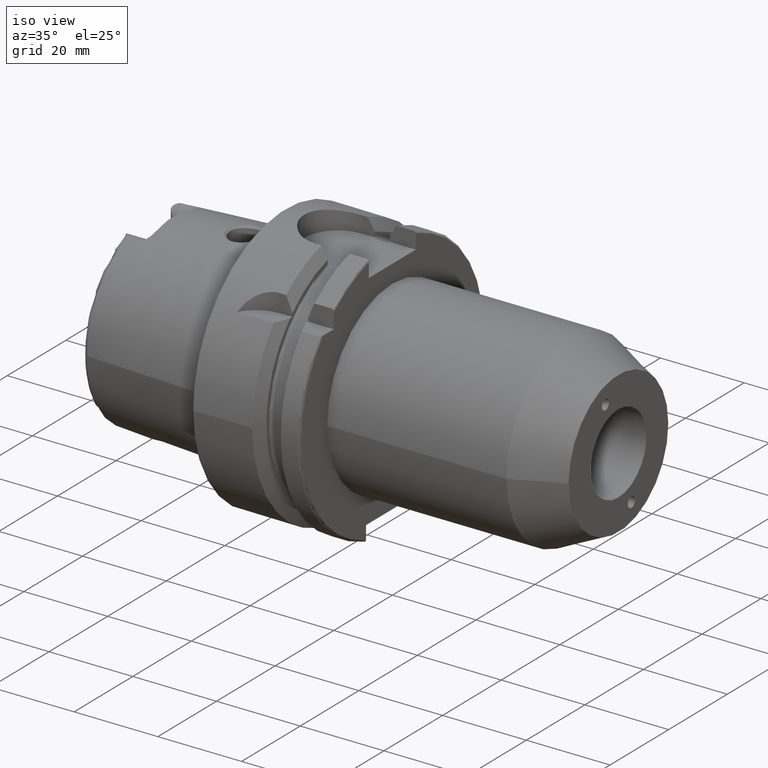
[diagram: clean part render]
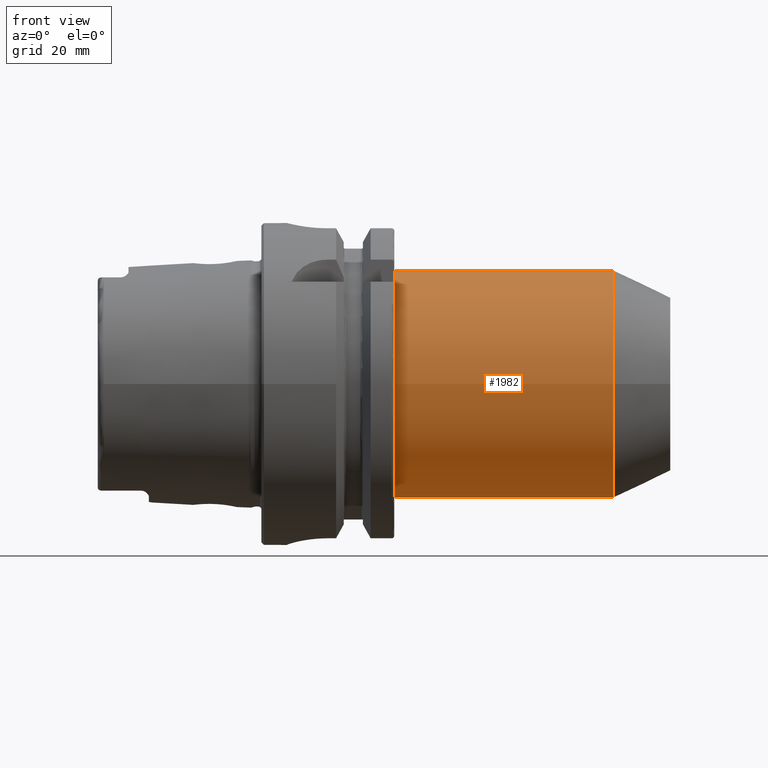
[diagram: tour spotlight — one face highlighted and labeled with its STEP entity id]
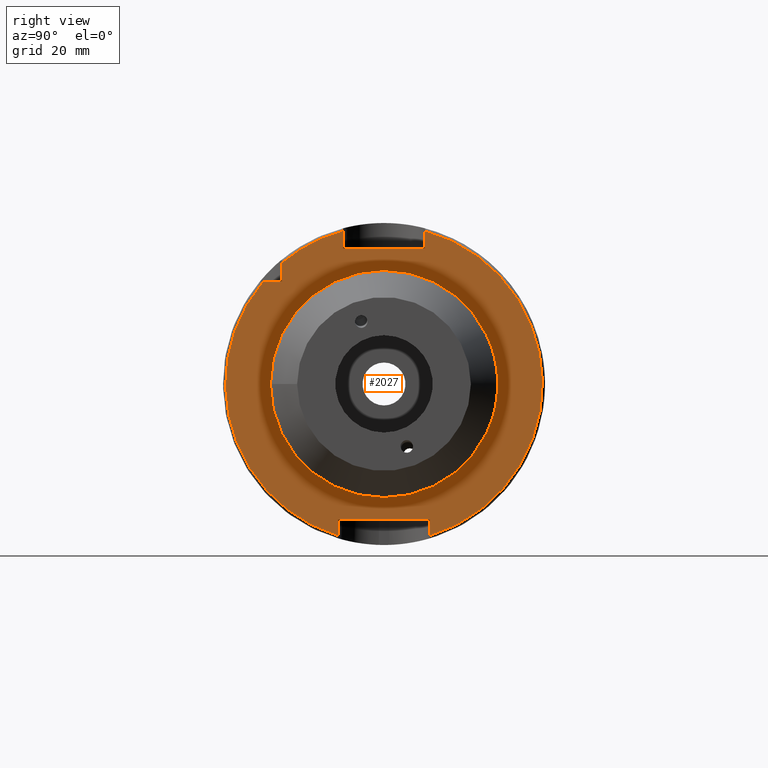
[diagram: tour spotlight — one face highlighted and labeled with its STEP entity id]
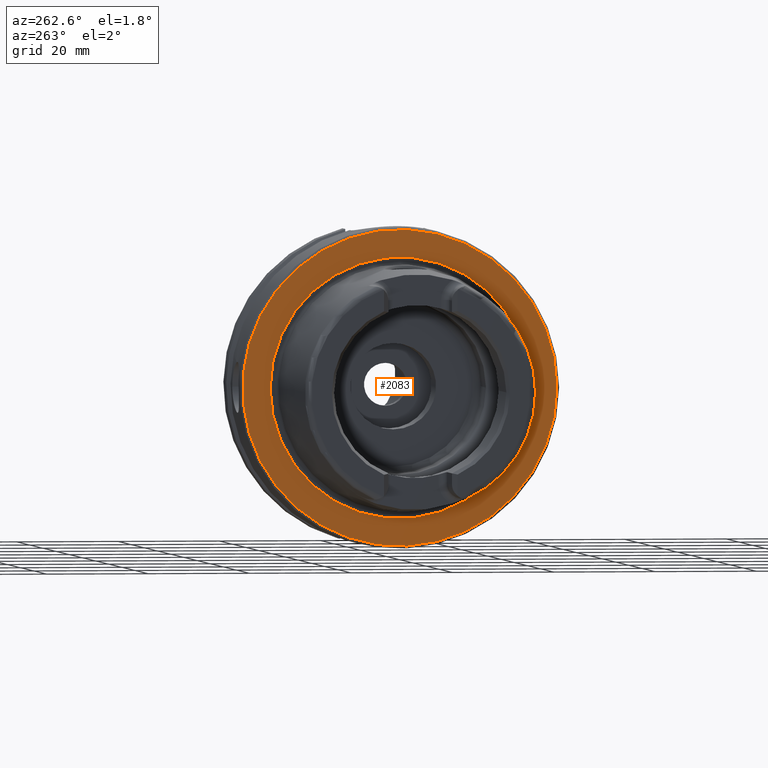
[diagram: tour spotlight — one face highlighted and labeled with its STEP entity id]
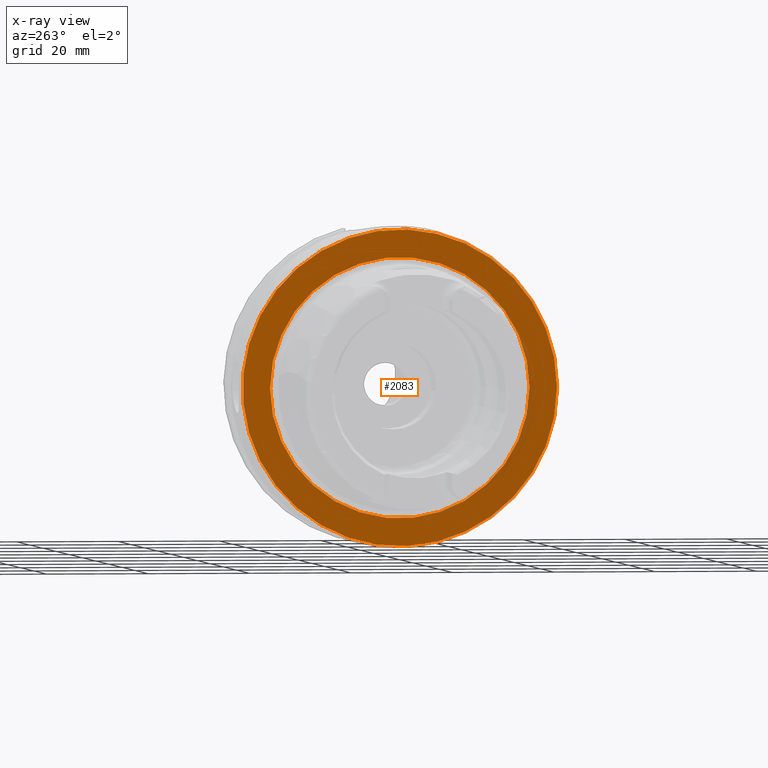
[diagram: x-ray of the same camera — body ghosted, this tour face saturated]
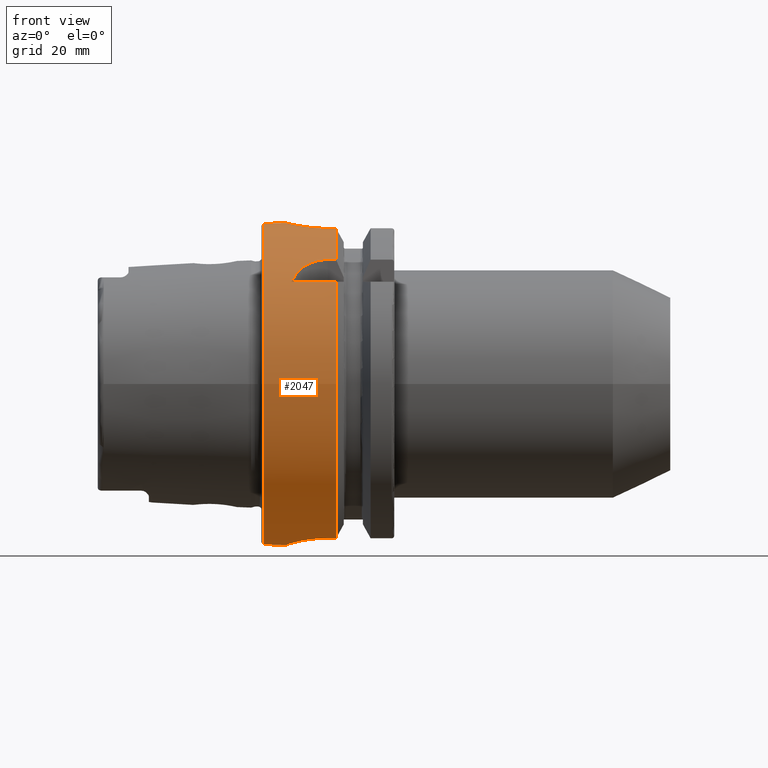
[diagram: tour spotlight — one face highlighted and labeled with its STEP entity id]
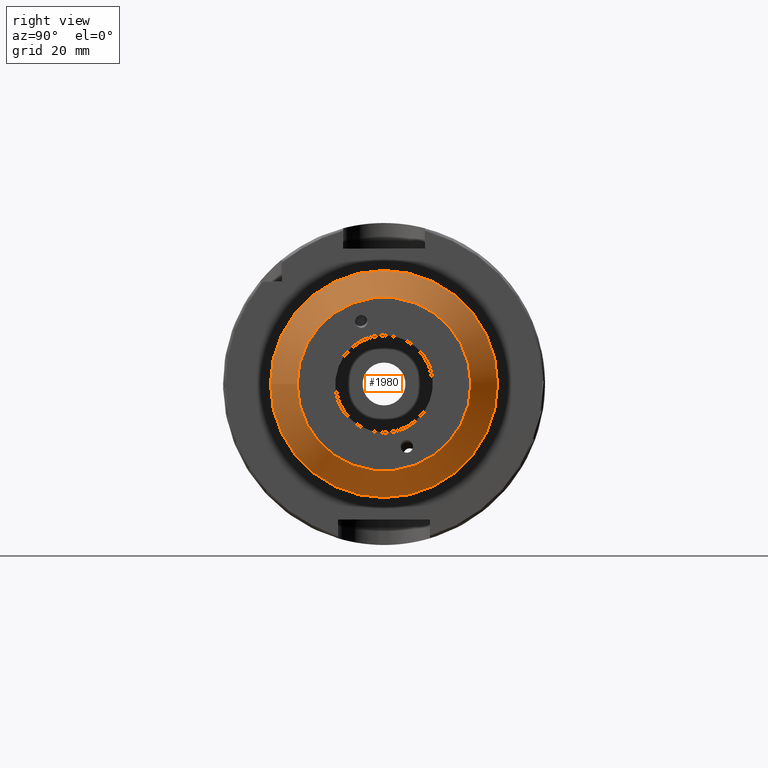
[diagram: tour spotlight — one face highlighted and labeled with its STEP entity id]
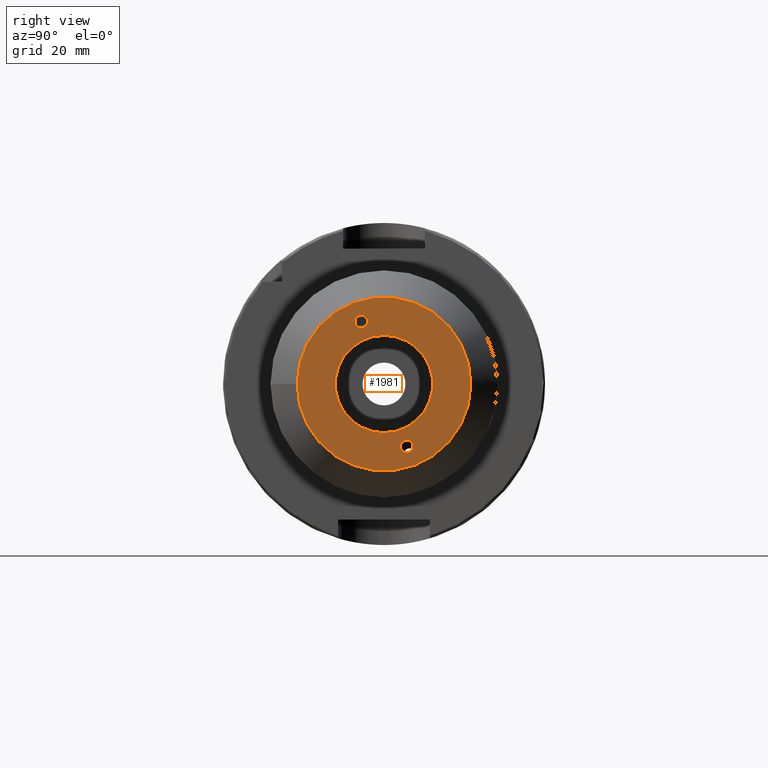
[diagram: tour spotlight — one face highlighted and labeled with its STEP entity id]
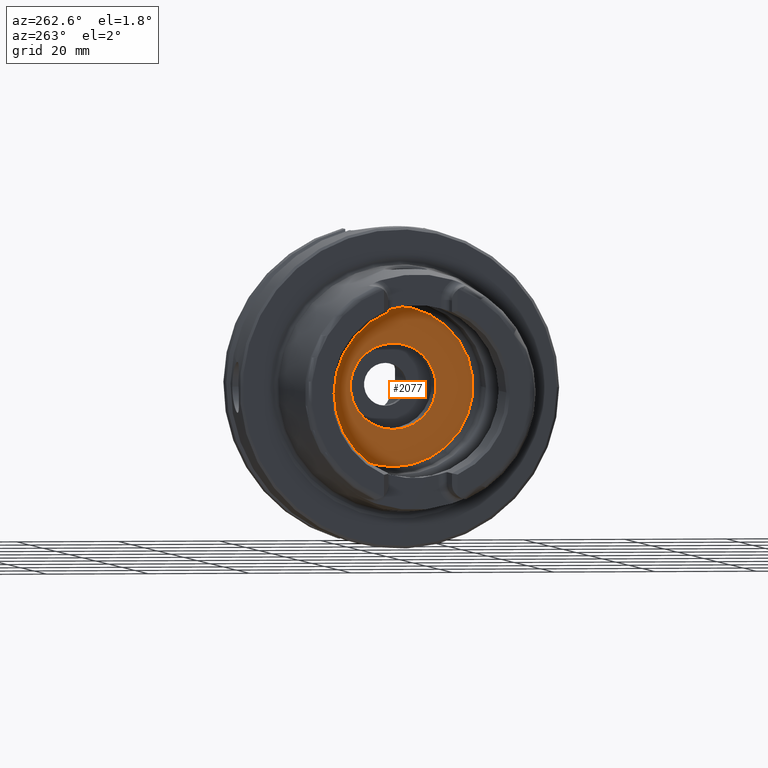
[diagram: tour spotlight — one face highlighted and labeled with its STEP entity id]
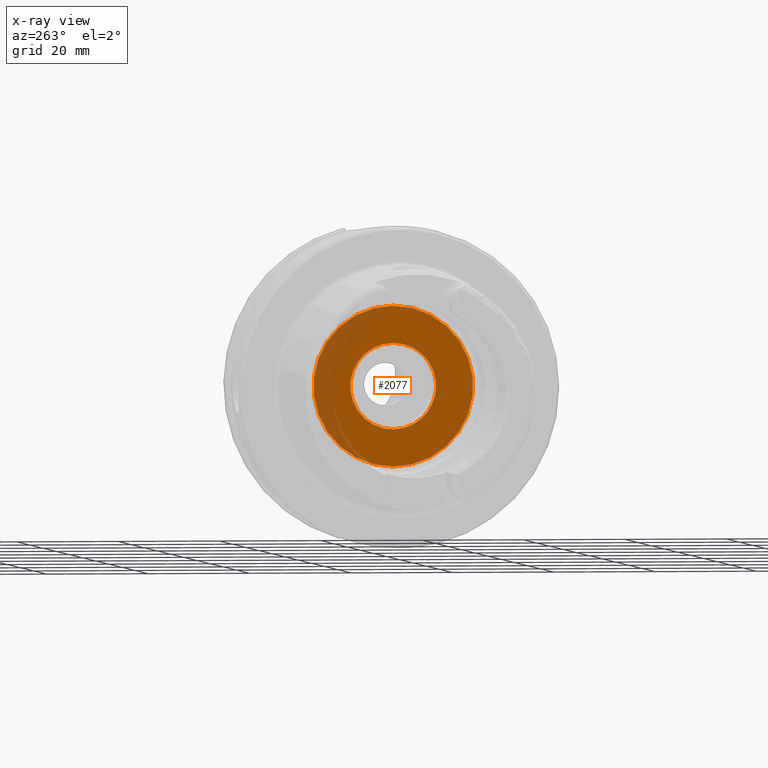
[diagram: x-ray of the same camera — body ghosted, this tour face saturated]
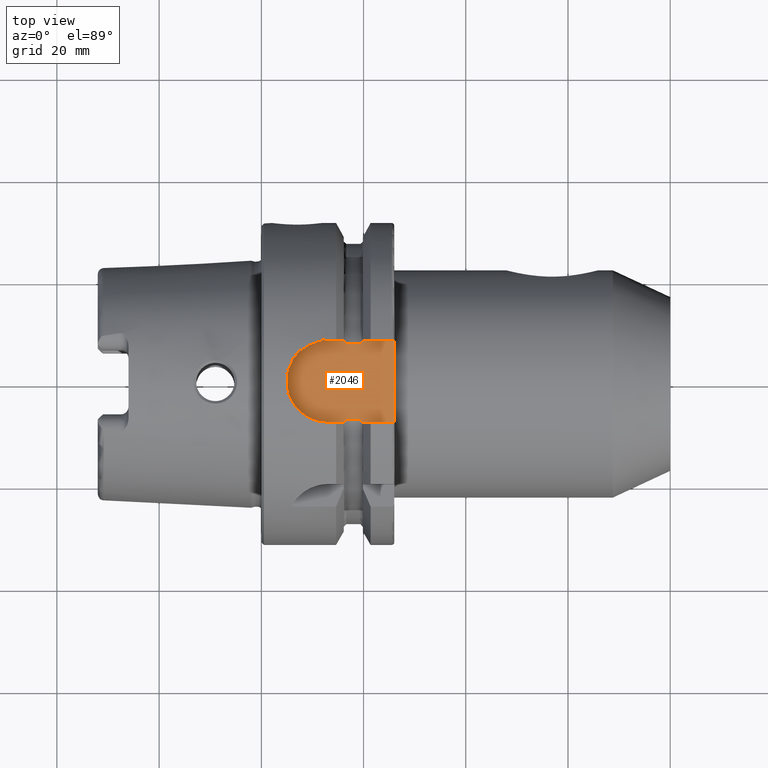
[diagram: tour spotlight — one face highlighted and labeled with its STEP entity id]
A machine part: a face-by-face anatomy tour. The part has 118 B-rep faces; the first image is the clean iso view, then the 8 largest visible faces are spotlighted one at a time (largest first), each with its STEP entity span.

Face 1 — front view, entity #1982. In plain terms, the highlighted cylindrical surface (bore or boss wall) has radius 22.225 mm, axis along (1, 0, 0).
Definition (entity closure, byte-faithful):
#58=FACE_BOUND('',#354,.T.);
#109=B_SPLINE_CURVE_WITH_KNOTS('',3,(#2977,#2978,#2979,#2980,#2981,#2982,
#2983,#2984,#2985,#2986,#2987,#2988,#2989,#2990,#2991,#2992,#2993,#2994),
 .UNSPECIFIED.,.F.,.F.,(4,2,2,2,2,2,2,2,4),(1.26582394054199,1.5888496097649,
1.91187527898781,2.2217615800359,2.53164788108398,2.84153418213206,3.15142048318015,
3.47444615240306,3.79747182162597),.UNSPECIFIED.);
#110=B_SPLINE_CURVE_WITH_KNOTS('',3,(#2998,#2999,#3000,#3001,#3002,#3003,
#3004,#3005,#3006,#3007,#3008,#3009,#3010,#3011,#3012,#3013,#3014,#3015,
#3016),.UNSPECIFIED.,.F.,.F.,(4,2,2,2,3,2,2,2,4),(3.79747182162597,4.12049749084888,
4.44352316007179,4.75340946111988,5.06329576216796,5.37318206321605,5.68306836426413,
6.00609403348704,6.32911970270995),.UNSPECIFIED.);
#186=CYLINDRICAL_SURFACE('',#2135,22.225);
#229=FACE_OUTER_BOUND('',#353,.T.);
#353=EDGE_LOOP('',(#1371,#1372,#1373,#1374));
#354=EDGE_LOOP('',(#1375,#1376));
#477=LINE('',#3090,#587);
#587=VECTOR('',#2416,22.225);
#697=CIRCLE('',#2133,22.225);
#698=CIRCLE('',#2136,22.225);
#812=VERTEX_POINT('',#2975);
#813=VERTEX_POINT('',#2976);
#823=VERTEX_POINT('',#3084);
#824=VERTEX_POINT('',#3089);
#1019=EDGE_CURVE('',#812,#813,#109,.T.);
#1022=EDGE_CURVE('',#813,#812,#110,.T.);
#1035=EDGE_CURVE('',#823,#823,#697,.T.);
#1036=EDGE_CURVE('',#823,#824,#477,.T.);
#1037=EDGE_CURVE('',#824,#824,#698,.T.);
#1371=ORIENTED_EDGE('',*,*,#1035,.F.);
#1372=ORIENTED_EDGE('',*,*,#1036,.T.);
#1373=ORIENTED_EDGE('',*,*,#1037,.F.);
#1374=ORIENTED_EDGE('',*,*,#1036,.F.);
#1375=ORIENTED_EDGE('',*,*,#1019,.T.);
#1376=ORIENTED_EDGE('',*,*,#1022,.T.);
#1982=ADVANCED_FACE('',(#229,#58),#186,.T.);
#2133=AXIS2_PLACEMENT_3D('',#3086,#2410,#2411);
#2135=AXIS2_PLACEMENT_3D('',#3088,#2414,#2415);
#2136=AXIS2_PLACEMENT_3D('',#3091,#2417,#2418);
#2410=DIRECTION('center_axis',(1.,0.,0.));
#2411=DIRECTION('ref_axis',(0.,0.,-1.));
#2414=DIRECTION('center_axis',(1.,0.,0.));
#2415=DIRECTION('ref_axis',(0.,1.,0.));
#2416=DIRECTION('',(-1.,0.,0.));
#2417=DIRECTION('center_axis',(-1.,0.,0.));
#2418=DIRECTION('ref_axis',(0.,1.,0.));
#2975=CARTESIAN_POINT('',(47.9,22.225,0.));
#2976=CARTESIAN_POINT('',(65.9,22.225,0.));
#2977=CARTESIAN_POINT('Ctrl Pts',(47.9,22.225,9.71445146547012E-16));
#2978=CARTESIAN_POINT('Ctrl Pts',(47.9,22.225,-1.07675223074304));
#2979=CARTESIAN_POINT('Ctrl Pts',(48.1872550137655,22.1393903647724,-2.18715679516309));
#2980=CARTESIAN_POINT('Ctrl Pts',(49.2525072446435,21.8562013500568,-4.15243385898174));
#2981=CARTESIAN_POINT('Ctrl Pts',(50.0284250394779,21.6635346733893,-5.00913733680887));
#2982=CARTESIAN_POINT('Ctrl Pts',(51.6791819816189,21.3291167280987,-6.27958133679025));
#2983=CARTESIAN_POINT('Ctrl Pts',(52.6611736874285,21.16239385207,-6.79952293932358));
#2984=CARTESIAN_POINT('Ctrl Pts',(54.7549126974015,20.9308898087762,-7.48186252034971));
#2985=CARTESIAN_POINT('Ctrl Pts',(55.8670456631731,20.869082909309,-7.64408290930895));
#2986=CARTESIAN_POINT('Ctrl Pts',(57.9329543368269,20.869082909309,-7.64408290930895));
#2987=CARTESIAN_POINT('Ctrl Pts',(59.0450873025985,20.9308898087762,-7.48186252034971));
#2988=CARTESIAN_POINT('Ctrl Pts',(61.1388263125715,21.16239385207,-6.79952293932358));
#2989=CARTESIAN_POINT('Ctrl Pts',(62.1208180183811,21.3291167280987,-6.27958133679025));
#2990=CARTESIAN_POINT('Ctrl Pts',(63.7715749605221,21.6635346733893,-5.00913733680887));
#2991=CARTESIAN_POINT('Ctrl Pts',(64.5474927553565,21.8562013500568,-4.15243385898173));
#2992=CARTESIAN_POINT('Ctrl Pts',(65.6127449862345,22.1393903647724,-2.18715679516308));
#2993=CARTESIAN_POINT('Ctrl Pts',(65.9,22.225,-1.07675223074304));
#2994=CARTESIAN_POINT('Ctrl Pts',(65.9,22.225,-3.88578058618805E-15));
#2998=CARTESIAN_POINT('Ctrl Pts',(65.9,22.225,-2.77555756156289E-15));
#2999=CARTESIAN_POINT('Ctrl Pts',(65.9,22.225,1.07675223074304));
#3000=CARTESIAN_POINT('Ctrl Pts',(65.6127449862345,22.1393903647724,2.18715679516308));
#3001=CARTESIAN_POINT('Ctrl Pts',(64.5474927553565,21.8562013500568,4.15243385898174));
#3002=CARTESIAN_POINT('Ctrl Pts',(63.7715749605221,21.6635346733893,5.00913733680888));
#3003=CARTESIAN_POINT('Ctrl Pts',(62.1208180183811,21.3291167280987,6.27958133679025));
#3004=CARTESIAN_POINT('Ctrl Pts',(61.1388263125715,21.16239385207,6.79952293932358));
#3005=CARTESIAN_POINT('Ctrl Pts',(59.0450873025985,20.9308898087762,7.48186252034971));
#3006=CARTESIAN_POINT('Ctrl Pts',(57.9329543368269,20.8690829093089,7.64408290930895));
#3007=CARTESIAN_POINT('Ctrl Pts',(56.9,20.869082909309,7.64408290930895));
#3008=CARTESIAN_POINT('Ctrl Pts',(55.8670456631731,20.869082909309,7.64408290930895));
#3009=CARTESIAN_POINT('Ctrl Pts',(54.7549126974015,20.9308898087762,7.4818625203497));
#3010=CARTESIAN_POINT('Ctrl Pts',(52.6611736874285,21.16239385207,6.79952293932358));
#3011=CARTESIAN_POINT('Ctrl Pts',(51.6791819816189,21.3291167280987,6.27958133679025));
#3012=CARTESIAN_POINT('Ctrl Pts',(50.0284250394779,21.6635346733893,5.00913733680888));
#3013=CARTESIAN_POINT('Ctrl Pts',(49.2525072446435,21.8562013500568,4.15243385898174));
#3014=CARTESIAN_POINT('Ctrl Pts',(48.1872550137655,22.1393903647724,2.18715679516309));
#3015=CARTESIAN_POINT('Ctrl Pts',(47.9,22.225,1.07675223074304));
#3016=CARTESIAN_POINT('Ctrl Pts',(47.9,22.225,8.32667268468867E-16));
#3084=CARTESIAN_POINT('',(68.7949513403375,-22.225,-2.72177751110499E-15));
#3086=CARTESIAN_POINT('Origin',(68.7949513403375,0.,0.));
#3088=CARTESIAN_POINT('Origin',(47.3974756701688,0.,0.));
#3089=CARTESIAN_POINT('',(26.,-22.225,-2.72177751110499E-15));
#3090=CARTESIAN_POINT('',(47.3974756701688,-22.225,-2.72177751110499E-15));
#3091=CARTESIAN_POINT('Origin',(26.,0.,0.));

Face 2 — right view, entity #2027. In plain terms, the highlighted planar face has unit normal (1, 0, 0).
Definition (entity closure, byte-faithful):
#61=FACE_BOUND('',#402,.T.);
#92=PLANE('',#2234);
#274=FACE_OUTER_BOUND('',#401,.T.);
#401=EDGE_LOOP('',(#1635,#1636,#1637,#1638,#1639,#1640,#1641,#1642,#1643,
#1644,#1645));
#402=EDGE_LOOP('',(#1646));
#510=LINE('',#3869,#620);
#516=LINE('',#3888,#626);
#527=LINE('',#3988,#637);
#529=LINE('',#4019,#639);
#537=LINE('',#4080,#647);
#547=LINE('',#4161,#657);
#548=LINE('',#4163,#658);
#549=LINE('',#4164,#659);
#620=VECTOR('',#2569,10.);
#626=VECTOR('',#2581,10.);
#637=VECTOR('',#2632,10.);
#639=VECTOR('',#2636,10.);
#647=VECTOR('',#2650,10.);
#657=VECTOR('',#2688,10.);
#658=VECTOR('',#2689,10.);
#659=VECTOR('',#2690,10.);
#698=CIRCLE('',#2136,22.225);
#739=CIRCLE('',#2217,31.);
#746=CIRCLE('',#2235,31.);
#747=CIRCLE('',#2236,31.);
#824=VERTEX_POINT('',#3089);
#902=VERTEX_POINT('',#3857);
#903=VERTEX_POINT('',#3868);
#910=VERTEX_POINT('',#3887);
#928=VERTEX_POINT('',#3967);
#930=VERTEX_POINT('',#3985);
#931=VERTEX_POINT('',#3987);
#934=VERTEX_POINT('',#4006);
#936=VERTEX_POINT('',#4018);
#961=VERTEX_POINT('',#4158);
#962=VERTEX_POINT('',#4160);
#963=VERTEX_POINT('',#4162);
#1037=EDGE_CURVE('',#824,#824,#698,.T.);
#1139=EDGE_CURVE('',#903,#902,#510,.T.);
#1147=EDGE_CURVE('',#910,#903,#516,.T.);
#1173=EDGE_CURVE('',#928,#910,#739,.T.);
#1177=EDGE_CURVE('',#931,#930,#527,.T.);
#1182=EDGE_CURVE('',#936,#934,#529,.T.);
#1197=EDGE_CURVE('',#930,#936,#537,.T.);
#1218=EDGE_CURVE('',#902,#931,#746,.T.);
#1219=EDGE_CURVE('',#934,#961,#747,.T.);
#1220=EDGE_CURVE('',#961,#962,#547,.T.);
#1221=EDGE_CURVE('',#962,#963,#548,.T.);
#1222=EDGE_CURVE('',#963,#928,#549,.T.);
#1635=ORIENTED_EDGE('',*,*,#1139,.T.);
#1636=ORIENTED_EDGE('',*,*,#1218,.T.);
#1637=ORIENTED_EDGE('',*,*,#1177,.T.);
#1638=ORIENTED_EDGE('',*,*,#1197,.T.);
#1639=ORIENTED_EDGE('',*,*,#1182,.T.);
#1640=ORIENTED_EDGE('',*,*,#1219,.T.);
#1641=ORIENTED_EDGE('',*,*,#1220,.T.);
#1642=ORIENTED_EDGE('',*,*,#1221,.T.);
#1643=ORIENTED_EDGE('',*,*,#1222,.T.);
#1644=ORIENTED_EDGE('',*,*,#1173,.T.);
#1645=ORIENTED_EDGE('',*,*,#1147,.T.);
#1646=ORIENTED_EDGE('',*,*,#1037,.T.);
#2027=ADVANCED_FACE('',(#274,#61),#92,.T.);
#2136=AXIS2_PLACEMENT_3D('',#3091,#2417,#2418);
#2217=AXIS2_PLACEMENT_3D('',#3968,#2627,#2628);
#2234=AXIS2_PLACEMENT_3D('',#4156,#2682,#2683);
#2235=AXIS2_PLACEMENT_3D('',#4157,#2684,#2685);
#2236=AXIS2_PLACEMENT_3D('',#4159,#2686,#2687);
#2417=DIRECTION('center_axis',(-1.,0.,0.));
#2418=DIRECTION('ref_axis',(0.,1.,0.));
#2569=DIRECTION('',(0.,-1.,0.));
#2581=DIRECTION('',(0.,0.,-1.));
#2627=DIRECTION('center_axis',(1.,0.,0.));
#2628=DIRECTION('ref_axis',(0.,0.,-1.));
#2632=DIRECTION('',(0.,0.,1.));
#2636=DIRECTION('',(0.,0.,-1.));
#2650=DIRECTION('',(0.,1.,0.));
#2682=DIRECTION('center_axis',(1.,0.,0.));
#2683=DIRECTION('ref_axis',(0.,0.,-1.));
#2684=DIRECTION('center_axis',(1.,0.,0.));
#2685=DIRECTION('ref_axis',(0.,0.,-1.));
#2686=DIRECTION('center_axis',(1.,0.,0.));
#2687=DIRECTION('ref_axis',(0.,0.,-1.));
#2688=DIRECTION('',(0.,0.,-1.));
#2689=DIRECTION('',(0.,-1.,0.));
#2690=DIRECTION('',(0.,0.,1.));
#3089=CARTESIAN_POINT('',(26.,-22.225,-2.72177751110499E-15));
#3091=CARTESIAN_POINT('Origin',(26.,0.,0.));
#3857=CARTESIAN_POINT('',(26.,-23.685438564654,20.));
#3868=CARTESIAN_POINT('',(26.,-20.,20.));
#3869=CARTESIAN_POINT('',(26.,-12.,20.));
#3887=CARTESIAN_POINT('',(26.,-20.,23.685438564654));
#3888=CARTESIAN_POINT('',(26.,-20.,10.));
#3967=CARTESIAN_POINT('',(26.,-8.,29.9499582637439));
#3968=CARTESIAN_POINT('Origin',(26.,0.,0.));
#3985=CARTESIAN_POINT('',(26.,-9.,-26.5));
#3987=CARTESIAN_POINT('',(26.,-9.,-29.6647939483827));
#3988=CARTESIAN_POINT('',(26.,-9.,-13.25));
#4006=CARTESIAN_POINT('',(26.,9.,-29.6647939483827));
#4018=CARTESIAN_POINT('',(26.,9.,-26.5));
#4019=CARTESIAN_POINT('',(26.,9.,-13.25));
#4080=CARTESIAN_POINT('',(26.,1.94289029309402E-15,-26.5));
#4156=CARTESIAN_POINT('Origin',(26.,0.,0.));
#4157=CARTESIAN_POINT('Origin',(26.,0.,0.));
#4158=CARTESIAN_POINT('',(26.,8.,29.9499582637439));
#4159=CARTESIAN_POINT('Origin',(26.,0.,0.));
#4160=CARTESIAN_POINT('',(26.,8.,26.5));
#4161=CARTESIAN_POINT('',(26.,8.,13.25));
#4162=CARTESIAN_POINT('',(26.,-8.,26.5));
#4163=CARTESIAN_POINT('',(26.,5.55111512312578E-16,26.5));
#4164=CARTESIAN_POINT('',(26.,-8.,13.25));

Face 3 — auxiliary view, entity #2083. An x-ray twin of the same camera follows (body ghosted, this face saturated) — the face is partly hidden behind the body. In plain terms, the highlighted planar face has unit normal (-1, 0, 0).
Definition (entity closure, byte-faithful):
#66=FACE_BOUND('',#463,.T.);
#108=PLANE('',#2345);
#330=FACE_OUTER_BOUND('',#462,.T.);
#462=EDGE_LOOP('',(#1932));
#463=EDGE_LOOP('',(#1933));
#800=CIRCLE('',#2344,25.5879092835167);
#801=CIRCLE('',#2346,31.);
#1006=VERTEX_POINT('',#4476);
#1007=VERTEX_POINT('',#4480);
#1316=EDGE_CURVE('',#1006,#1006,#800,.T.);
#1317=EDGE_CURVE('',#1007,#1007,#801,.T.);
#1932=ORIENTED_EDGE('',*,*,#1317,.F.);
#1933=ORIENTED_EDGE('',*,*,#1316,.T.);
#2083=ADVANCED_FACE('',(#330,#66),#108,.T.);
#2344=AXIS2_PLACEMENT_3D('',#4478,#2930,#2931);
#2345=AXIS2_PLACEMENT_3D('',#4479,#2932,#2933);
#2346=AXIS2_PLACEMENT_3D('',#4481,#2934,#2935);
#2930=DIRECTION('center_axis',(1.,0.,0.));
#2931=DIRECTION('ref_axis',(0.,0.,-1.));
#2932=DIRECTION('center_axis',(-1.,0.,0.));
#2933=DIRECTION('ref_axis',(0.,0.,1.));
#2934=DIRECTION('center_axis',(1.,0.,0.));
#2935=DIRECTION('ref_axis',(0.,0.,-1.));
#4476=CARTESIAN_POINT('',(-3.55618312575245E-16,-25.5879092835167,-3.13361512009315E-15));
#4478=CARTESIAN_POINT('Origin',(0.,0.,0.));
#4479=CARTESIAN_POINT('Origin',(0.,31.,0.));
#4480=CARTESIAN_POINT('',(-5.89805981832114E-16,-31.,-3.7964050773568E-15));
#4481=CARTESIAN_POINT('Origin',(0.,0.,0.));

Face 4 — front view, entity #2047. In plain terms, the highlighted cylindrical surface (bore or boss wall) has radius 31.5 mm, axis along (1, 0, 0).
Definition (entity closure, byte-faithful):
#62=FACE_BOUND('',#423,.T.);
#139=B_SPLINE_CURVE_WITH_KNOTS('',3,(#3810,#3811,#3812,#3813,#3814,#3815,
#3816,#3817,#3818,#3819,#3820,#3821,#3822,#3823,#3824,#3825,#3826,#3827,
#3828,#3829,#3830,#3831,#3832,#3833,#3834,#3835),.UNSPECIFIED.,.F.,.F.,
(4,2,2,2,2,2,2,2,2,2,2,2,4),(0.,0.188688694287612,0.377377388575223,0.56606194688798,
0.754746505200737,0.943431063513494,1.13211562182625,1.32080431611386,1.50949301040147,
1.69818170468909,1.8868703989767,2.07555495728945,2.26423951560221),
 .UNSPECIFIED.);
#140=B_SPLINE_CURVE_WITH_KNOTS('',3,(#3836,#3837,#3838,#3839,#3840,#3841,
#3842,#3843,#3844,#3845),.UNSPECIFIED.,.F.,.F.,(4,2,2,2,4),(2.26423951560221,
2.45292407391497,2.64160863222773,2.83029732651534,3.01898602080295),
 .UNSPECIFIED.);
#143=B_SPLINE_CURVE_WITH_KNOTS('',3,(#3907,#3908,#3909,#3910,#3911,#3912,
#3913,#3914,#3915,#3916,#3917,#3918),.UNSPECIFIED.,.F.,.F.,(4,2,2,2,2,4),
(1.1085154204615,1.31979218709236,1.52798350480179,1.73617482251122,1.90421770126337,
2.07226058001552),.UNSPECIFIED.);
#153=B_SPLINE_CURVE_WITH_KNOTS('',3,(#4096,#4097,#4098,#4099,#4100,#4101,
#4102,#4103,#4104,#4105),.UNSPECIFIED.,.F.,.F.,(4,2,2,2,4),(1.20927420824097,
1.5131742975437,1.81707438684643,2.12000449915965,2.42293461147287),
 .UNSPECIFIED.);
#156=B_SPLINE_CURVE_WITH_KNOTS('',3,(#4131,#4132,#4133,#4134,#4135,#4136,
#4137,#4138,#4139,#4140),.UNSPECIFIED.,.F.,.F.,(4,2,2,2,4),(0.,0.30293011231322,
0.605860224626439,0.90976031392917,1.2136604032319),.UNSPECIFIED.);
#166=B_SPLINE_CURVE_WITH_KNOTS('',3,(#4295,#4296,#4297,#4298,#4299,#4300,
#4301,#4302,#4303,#4304,#4305,#4306,#4307,#4308,#4309,#4310,#4311,#4312),
 .UNSPECIFIED.,.F.,.F.,(4,2,2,2,2,2,2,2,4),(0.,0.302805879979318,0.605611759958635,
0.908372461246501,1.21113316253437,1.51389386382223,1.8166545651101,2.11946044508942,
2.42226632506874),.UNSPECIFIED.);
#205=CYLINDRICAL_SURFACE('',#2267,31.5);
#294=FACE_OUTER_BOUND('',#422,.T.);
#422=EDGE_LOOP('',(#1749,#1750,#1751,#1752,#1753,#1754,#1755,#1756,#1757,
#1758,#1759,#1760,#1761,#1762,#1763,#1764,#1765,#1766));
#423=EDGE_LOOP('',(#1767,#1768));
#514=LINE('',#3880,#624);
#520=LINE('',#3927,#630);
#541=LINE('',#4113,#651);
#542=LINE('',#4117,#652);
#557=LINE('',#4289,#667);
#560=LINE('',#4319,#670);
#562=LINE('',#4325,#672);
#624=VECTOR('',#2577,10.);
#630=VECTOR('',#2589,10.);
#651=VECTOR('',#2658,10.);
#652=VECTOR('',#2661,10.);
#667=VECTOR('',#2748,10.);
#670=VECTOR('',#2759,10.);
#672=VECTOR('',#2767,31.5);
#732=CIRCLE('',#2206,31.5);
#733=CIRCLE('',#2207,31.5);
#742=CIRCLE('',#2228,31.5);
#743=CIRCLE('',#2230,31.5);
#759=CIRCLE('',#2268,31.5);
#760=CIRCLE('',#2269,31.5);
#896=VERTEX_POINT('',#3807);
#897=VERTEX_POINT('',#3809);
#907=VERTEX_POINT('',#3877);
#908=VERTEX_POINT('',#3879);
#913=VERTEX_POINT('',#3906);
#915=VERTEX_POINT('',#3923);
#920=VERTEX_POINT('',#3939);
#921=VERTEX_POINT('',#3941);
#951=VERTEX_POINT('',#4094);
#952=VERTEX_POINT('',#4095);
#953=VERTEX_POINT('',#4115);
#954=VERTEX_POINT('',#4116);
#957=VERTEX_POINT('',#4130);
#958=VERTEX_POINT('',#4145);
#977=VERTEX_POINT('',#4286);
#978=VERTEX_POINT('',#4288);
#979=VERTEX_POINT('',#4294);
#981=VERTEX_POINT('',#4324);
#1133=EDGE_CURVE('',#897,#896,#139,.T.);
#1134=EDGE_CURVE('',#896,#897,#140,.T.);
#1144=EDGE_CURVE('',#908,#907,#514,.T.);
#1151=EDGE_CURVE('',#907,#913,#143,.T.);
#1155=EDGE_CURVE('',#913,#915,#520,.T.);
#1161=EDGE_CURVE('',#908,#920,#732,.T.);
#1162=EDGE_CURVE('',#920,#921,#733,.T.);
#1200=EDGE_CURVE('',#951,#952,#153,.T.);
#1204=EDGE_CURVE('',#952,#921,#541,.T.);
#1205=EDGE_CURVE('',#953,#954,#542,.T.);
#1210=EDGE_CURVE('',#954,#957,#156,.T.);
#1212=EDGE_CURVE('',#957,#951,#742,.T.);
#1213=EDGE_CURVE('',#953,#958,#743,.T.);
#1250=EDGE_CURVE('',#978,#977,#557,.T.);
#1252=EDGE_CURVE('',#977,#979,#166,.T.);
#1256=EDGE_CURVE('',#979,#958,#560,.T.);
#1258=EDGE_CURVE('',#978,#915,#759,.T.);
#1259=EDGE_CURVE('',#920,#981,#562,.T.);
#1260=EDGE_CURVE('',#981,#981,#760,.T.);
#1749=ORIENTED_EDGE('',*,*,#1155,.T.);
#1750=ORIENTED_EDGE('',*,*,#1258,.F.);
#1751=ORIENTED_EDGE('',*,*,#1250,.T.);
#1752=ORIENTED_EDGE('',*,*,#1252,.T.);
#1753=ORIENTED_EDGE('',*,*,#1256,.T.);
#1754=ORIENTED_EDGE('',*,*,#1213,.F.);
#1755=ORIENTED_EDGE('',*,*,#1205,.T.);
#1756=ORIENTED_EDGE('',*,*,#1210,.T.);
#1757=ORIENTED_EDGE('',*,*,#1212,.T.);
#1758=ORIENTED_EDGE('',*,*,#1200,.T.);
#1759=ORIENTED_EDGE('',*,*,#1204,.T.);
#1760=ORIENTED_EDGE('',*,*,#1162,.F.);
#1761=ORIENTED_EDGE('',*,*,#1259,.T.);
#1762=ORIENTED_EDGE('',*,*,#1260,.T.);
#1763=ORIENTED_EDGE('',*,*,#1259,.F.);
#1764=ORIENTED_EDGE('',*,*,#1161,.F.);
#1765=ORIENTED_EDGE('',*,*,#1144,.T.);
#1766=ORIENTED_EDGE('',*,*,#1151,.T.);
#1767=ORIENTED_EDGE('',*,*,#1133,.T.);
#1768=ORIENTED_EDGE('',*,*,#1134,.T.);
#2047=ADVANCED_FACE('',(#294,#62),#205,.T.);
#2206=AXIS2_PLACEMENT_3D('',#3940,#2602,#2603);
#2207=AXIS2_PLACEMENT_3D('',#3942,#2604,#2605);
#2228=AXIS2_PLACEMENT_3D('',#4143,#2669,#2670);
#2230=AXIS2_PLACEMENT_3D('',#4146,#2673,#2674);
#2267=AXIS2_PLACEMENT_3D('',#4322,#2763,#2764);
#2268=AXIS2_PLACEMENT_3D('',#4323,#2765,#2766);
#2269=AXIS2_PLACEMENT_3D('',#4326,#2768,#2769);
#2577=DIRECTION('',(-1.,0.,0.));
#2589=DIRECTION('',(1.,0.,0.));
#2602=DIRECTION('center_axis',(1.,0.,0.));
#2603=DIRECTION('ref_axis',(0.,0.,-1.));
#2604=DIRECTION('center_axis',(1.,0.,0.));
#2605=DIRECTION('ref_axis',(0.,0.,-1.));
#2658=DIRECTION('',(1.,0.,0.));
#2661=DIRECTION('',(-1.,0.,0.));
#2669=DIRECTION('center_axis',(-1.,0.,0.));
#2670=DIRECTION('ref_axis',(0.,1.,0.));
#2673=DIRECTION('center_axis',(1.,0.,0.));
#2674=DIRECTION('ref_axis',(0.,0.,-1.));
#2748=DIRECTION('',(-1.,0.,0.));
#2759=DIRECTION('',(1.,0.,0.));
#2763=DIRECTION('center_axis',(1.,0.,0.));
#2764=DIRECTION('ref_axis',(0.,1.,0.));
#2765=DIRECTION('center_axis',(1.,0.,0.));
#2766=DIRECTION('ref_axis',(0.,0.,-1.));
#2767=DIRECTION('',(-1.,0.,0.));
#2768=DIRECTION('center_axis',(1.,0.,0.));
#2769=DIRECTION('ref_axis',(0.,0.,-1.));
#3807=CARTESIAN_POINT('',(12.,31.5,-6.12323399573677E-16));
#3809=CARTESIAN_POINT('',(7.,31.100643080168,5.));
#3810=CARTESIAN_POINT('Ctrl Pts',(7.,31.100643080168,5.));
#3811=CARTESIAN_POINT('Ctrl Pts',(6.37103768570796,31.100643080168,5.));
#3812=CARTESIAN_POINT('Ctrl Pts',(5.70089281579202,31.1216953112949,4.87408354368814));
#3813=CARTESIAN_POINT('Ctrl Pts',(4.46931934300962,31.1973810209855,4.36348784122736));
#3814=CARTESIAN_POINT('Ctrl Pts',(3.90779781350673,31.2508828501623,3.97886562537221));
#3815=CARTESIAN_POINT('Ctrl Pts',(3.021144092268,31.3510329557602,3.09221190413348));
#3816=CARTESIAN_POINT('Ctrl Pts',(2.63651425348544,31.4042391414288,2.5306861925578));
#3817=CARTESIAN_POINT('Ctrl Pts',(2.12591301120586,31.4792463697936,1.29909839144709));
#3818=CARTESIAN_POINT('Ctrl Pts',(2.,31.5,0.62894852770919));
#3819=CARTESIAN_POINT('Ctrl Pts',(2.,31.5,-0.62894852770919));
#3820=CARTESIAN_POINT('Ctrl Pts',(2.12591301120586,31.4792463697936,-1.29909839144709));
#3821=CARTESIAN_POINT('Ctrl Pts',(2.63651425348544,31.4042391414288,-2.5306861925578));
#3822=CARTESIAN_POINT('Ctrl Pts',(3.021144092268,31.3510329557602,-3.09221190413348));
#3823=CARTESIAN_POINT('Ctrl Pts',(3.90779781350673,31.2508828501623,-3.97886562537221));
#3824=CARTESIAN_POINT('Ctrl Pts',(4.46931934300962,31.1973810209855,-4.36348784122736));
#3825=CARTESIAN_POINT('Ctrl Pts',(5.70089281579202,31.1216953112949,-4.87408354368814));
#3826=CARTESIAN_POINT('Ctrl Pts',(6.37103768570796,31.100643080168,-5.));
#3827=CARTESIAN_POINT('Ctrl Pts',(7.62896231429204,31.100643080168,-5.));
#3828=CARTESIAN_POINT('Ctrl Pts',(8.29910718420798,31.1216953112949,-4.87408354368814));
#3829=CARTESIAN_POINT('Ctrl Pts',(9.53068065699038,31.1973810209855,-4.36348784122736));
#3830=CARTESIAN_POINT('Ctrl Pts',(10.0922021864933,31.2508828501623,-3.97886562537221));
#3831=CARTESIAN_POINT('Ctrl Pts',(10.978855907732,31.3510329557602,-3.09221190413348));
#3832=CARTESIAN_POINT('Ctrl Pts',(11.3634857465146,31.4042391414288,-2.53068619255779));
#3833=CARTESIAN_POINT('Ctrl Pts',(11.8740869887941,31.4792463697936,-1.29909839144708));
#3834=CARTESIAN_POINT('Ctrl Pts',(12.,31.5,-0.62894852770919));
#3835=CARTESIAN_POINT('Ctrl Pts',(12.,31.5,-4.16333634234434E-16));
#3836=CARTESIAN_POINT('Ctrl Pts',(12.,31.5,-1.11022302462516E-15));
#3837=CARTESIAN_POINT('Ctrl Pts',(12.,31.5,0.628948527709188));
#3838=CARTESIAN_POINT('Ctrl Pts',(11.8740869887941,31.4792463697936,1.29909839144708));
#3839=CARTESIAN_POINT('Ctrl Pts',(11.3634857465146,31.4042391414288,2.53068619255779));
#3840=CARTESIAN_POINT('Ctrl Pts',(10.978855907732,31.3510329557602,3.09221190413348));
#3841=CARTESIAN_POINT('Ctrl Pts',(10.0922021864933,31.2508828501623,3.97886562537221));
#3842=CARTESIAN_POINT('Ctrl Pts',(9.53068065699038,31.1973810209855,4.36348784122736));
#3843=CARTESIAN_POINT('Ctrl Pts',(8.29910718420798,31.1216953112949,4.87408354368814));
#3844=CARTESIAN_POINT('Ctrl Pts',(7.62896231429204,31.100643080168,5.));
#3845=CARTESIAN_POINT('Ctrl Pts',(7.,31.100643080168,5.));
#3877=CARTESIAN_POINT('',(5.88828609634419,-24.3361870472759,20.));
#3879=CARTESIAN_POINT('',(14.6225009252407,-24.3361870472759,20.));
#3880=CARTESIAN_POINT('',(7.56125046262034,-24.3361870472759,20.));
#3906=CARTESIAN_POINT('',(13.,-20.,24.3361870472759));
#3907=CARTESIAN_POINT('Ctrl Pts',(5.88828609634419,-24.3361870472759,20.));
#3908=CARTESIAN_POINT('Ctrl Pts',(6.11069532820048,-23.9044753723342,20.5253108035937));
#3909=CARTESIAN_POINT('Ctrl Pts',(6.38325999044306,-23.4713523250807,21.0173865932788));
#3910=CARTESIAN_POINT('Ctrl Pts',(7.044898076458,-22.6317364276543,21.9186738868096));
#3911=CARTESIAN_POINT('Ctrl Pts',(7.46714468561685,-22.1861072682036,22.3682920878559));
#3912=CARTESIAN_POINT('Ctrl Pts',(8.46725531403812,-21.3767026700071,23.143042657319));
#3913=CARTESIAN_POINT('Ctrl Pts',(9.04646427720221,-21.0147449478223,23.4683362269255));
#3914=CARTESIAN_POINT('Ctrl Pts',(10.1145001432702,-20.5200081116516,23.9011603796022));
#3915=CARTESIAN_POINT('Ctrl Pts',(10.670823971716,-20.3234249831704,24.0673462447194));
#3916=CARTESIAN_POINT('Ctrl Pts',(11.8334528721306,-20.063121855676,24.2847667849476));
#3917=CARTESIAN_POINT('Ctrl Pts',(12.4398570708262,-20.,24.3361870472759));
#3918=CARTESIAN_POINT('Ctrl Pts',(13.,-20.,24.3361870472759));
#3923=CARTESIAN_POINT('',(14.6225009252407,-20.,24.3361870472759));
#3927=CARTESIAN_POINT('',(7.56125046262035,-20.,24.3361870472759));
#3939=CARTESIAN_POINT('',(14.6225009252407,-31.5,-3.85763741731416E-15));
#3940=CARTESIAN_POINT('Origin',(14.6225009252407,0.,0.));
#3941=CARTESIAN_POINT('',(14.6225009252407,-9.,-30.1869176962472));
#3942=CARTESIAN_POINT('Origin',(14.6225009252407,0.,0.));
#4094=CARTESIAN_POINT('',(5.,-0.999999999999999,-31.4841229828623));
#4095=CARTESIAN_POINT('',(13.,-9.,-30.1869176962472));
#4096=CARTESIAN_POINT('Ctrl Pts',(5.,-0.999999999999997,-31.4841229828623));
#4097=CARTESIAN_POINT('Ctrl Pts',(5.,-2.01248971281587,-31.4519642432536));
#4098=CARTESIAN_POINT('Ctrl Pts',(5.2037733306458,-3.08756640398171,-31.3640631381934));
#4099=CARTESIAN_POINT('Ctrl Pts',(6.02370102555041,-5.05836608044729,-31.1070804719497));
#4100=CARTESIAN_POINT('Ctrl Pts',(6.63955745341061,-5.95454409907418,-30.9405445582004));
#4101=CARTESIAN_POINT('Ctrl Pts',(8.05472493283182,-7.36715009628369,-30.6348764237341));
#4102=CARTESIAN_POINT('Ctrl Pts',(8.9496642215883,-7.98063403850821,-30.4752177477269));
#4103=CARTESIAN_POINT('Ctrl Pts',(10.9171740660538,-8.79719825889174,-30.2496070227108));
#4104=CARTESIAN_POINT('Ctrl Pts',(11.9902329589559,-9.,-30.1869176962472));
#4105=CARTESIAN_POINT('Ctrl Pts',(13.,-9.,-30.1869176962472));
#4113=CARTESIAN_POINT('',(7.56125046262035,-8.99999999999999,-30.1869176962472));
#4115=CARTESIAN_POINT('',(14.6225009252407,9.,-30.1869176962472));
#4116=CARTESIAN_POINT('',(13.,9.00000000000001,-30.1869176962472));
#4117=CARTESIAN_POINT('',(7.56125046262034,9.00000000000001,-30.1869176962472));
#4130=CARTESIAN_POINT('',(5.,1.,-31.4841229828623));
#4131=CARTESIAN_POINT('Ctrl Pts',(13.,9.00000000000001,-30.1869176962472));
#4132=CARTESIAN_POINT('Ctrl Pts',(11.9902329589559,9.00000000000001,-30.1869176962472));
#4133=CARTESIAN_POINT('Ctrl Pts',(10.9171740660538,8.79719825889175,-30.2496070227108));
#4134=CARTESIAN_POINT('Ctrl Pts',(8.9496642215883,7.98063403850822,-30.4752177477269));
#4135=CARTESIAN_POINT('Ctrl Pts',(8.05472493283182,7.3671500962837,-30.6348764237341));
#4136=CARTESIAN_POINT('Ctrl Pts',(6.63955745341061,5.95454409907419,-30.9405445582004));
#4137=CARTESIAN_POINT('Ctrl Pts',(6.02370102555041,5.0583660804473,-31.1070804719497));
#4138=CARTESIAN_POINT('Ctrl Pts',(5.2037733306458,3.08756640398172,-31.3640631381934));
#4139=CARTESIAN_POINT('Ctrl Pts',(5.,2.01248971281588,-31.4519642432536));
#4140=CARTESIAN_POINT('Ctrl Pts',(5.,1.00000000000001,-31.4841229828623));
#4143=CARTESIAN_POINT('Origin',(5.,0.,0.));
#4145=CARTESIAN_POINT('',(14.6225009252407,8.,30.4671954731642));
#4146=CARTESIAN_POINT('Origin',(14.6225009252407,0.,0.));
#4286=CARTESIAN_POINT('',(13.,-8.,30.4671954731642));
#4288=CARTESIAN_POINT('',(14.6225009252407,-8.,30.4671954731642));
#4289=CARTESIAN_POINT('',(7.56125046262034,-8.,30.4671954731642));
#4294=CARTESIAN_POINT('',(13.,8.,30.4671954731642));
#4295=CARTESIAN_POINT('Ctrl Pts',(13.,-8.,30.4671954731643));
#4296=CARTESIAN_POINT('Ctrl Pts',(11.9906470667356,-8.,30.4671954731643));
#4297=CARTESIAN_POINT('Ctrl Pts',(10.9172075930168,-7.79737202490167,30.5225803085525));
#4298=CARTESIAN_POINT('Ctrl Pts',(8.94758399331801,-6.97961067526075,30.719895002943));
#4299=CARTESIAN_POINT('Ctrl Pts',(8.05099322370438,-6.36470172268915,30.8586830127239));
#4300=CARTESIAN_POINT('Ctrl Pts',(6.63540388828045,-4.94911238726521,31.1170994373341));
#4301=CARTESIAN_POINT('Ctrl Pts',(6.02041263015313,-4.05247770930662,31.2539072689014));
#4302=CARTESIAN_POINT('Ctrl Pts',(5.20259114887399,-2.08269813865027,31.4466478906396));
#4303=CARTESIAN_POINT('Ctrl Pts',(5.,-1.00920233762622,31.5));
#4304=CARTESIAN_POINT('Ctrl Pts',(5.,1.00920233762622,31.5));
#4305=CARTESIAN_POINT('Ctrl Pts',(5.20259114887399,2.08269813865027,31.4466478906396));
#4306=CARTESIAN_POINT('Ctrl Pts',(6.02041263015313,4.05247770930662,31.2539072689014));
#4307=CARTESIAN_POINT('Ctrl Pts',(6.63540388828045,4.94911238726521,31.1170994373341));
#4308=CARTESIAN_POINT('Ctrl Pts',(8.05099322370439,6.36470172268915,30.8586830127239));
#4309=CARTESIAN_POINT('Ctrl Pts',(8.94758399331801,6.97961067526075,30.719895002943));
#4310=CARTESIAN_POINT('Ctrl Pts',(10.9172075930168,7.79737202490167,30.5225803085525));
#4311=CARTESIAN_POINT('Ctrl Pts',(11.9906470667356,8.,30.4671954731643));
#4312=CARTESIAN_POINT('Ctrl Pts',(13.,8.,30.4671954731643));
#4319=CARTESIAN_POINT('',(7.56125046262035,8.,30.4671954731642));
#4322=CARTESIAN_POINT('Origin',(7.56125046262034,0.,0.));
#4323=CARTESIAN_POINT('Origin',(14.6225009252407,0.,0.));
#4324=CARTESIAN_POINT('',(0.5,-31.5,-3.85763741731416E-15));
#4325=CARTESIAN_POINT('',(7.56125046262034,-31.5,-3.85763741731416E-15));
#4326=CARTESIAN_POINT('Origin',(0.5,0.,0.));

Face 5 — right view, entity #1980. In plain terms, the highlighted conical surface has half-angle 25 deg.
Definition (entity closure, byte-faithful):
#227=FACE_OUTER_BOUND('',#348,.T.);
#348=EDGE_LOOP('',(#1363,#1364,#1365,#1366));
#476=LINE('',#3085,#586);
#586=VECTOR('',#2409,19.6125);
#696=CIRCLE('',#2132,17.);
#697=CIRCLE('',#2133,22.225);
#822=VERTEX_POINT('',#3082);
#823=VERTEX_POINT('',#3084);
#1033=EDGE_CURVE('',#822,#822,#696,.T.);
#1034=EDGE_CURVE('',#822,#823,#476,.T.);
#1035=EDGE_CURVE('',#823,#823,#697,.T.);
#1363=ORIENTED_EDGE('',*,*,#1033,.F.);
#1364=ORIENTED_EDGE('',*,*,#1034,.T.);
#1365=ORIENTED_EDGE('',*,*,#1035,.T.);
#1366=ORIENTED_EDGE('',*,*,#1034,.F.);
#1956=CONICAL_SURFACE('',#2131,19.6125,0.436332312998582);
#1980=ADVANCED_FACE('',(#227),#1956,.T.);
#2131=AXIS2_PLACEMENT_3D('',#3081,#2405,#2406);
#2132=AXIS2_PLACEMENT_3D('',#3083,#2407,#2408);
#2133=AXIS2_PLACEMENT_3D('',#3086,#2410,#2411);
#2405=DIRECTION('center_axis',(-1.,0.,0.));
#2406=DIRECTION('ref_axis',(0.,1.,0.));
#2407=DIRECTION('center_axis',(1.,0.,0.));
#2408=DIRECTION('ref_axis',(0.,0.,-1.));
#2409=DIRECTION('',(-0.90630778703665,-0.422618261740699,-5.17558101501965E-17));
#2410=DIRECTION('center_axis',(1.,0.,0.));
#2411=DIRECTION('ref_axis',(0.,0.,-1.));
#3081=CARTESIAN_POINT('Origin',(74.3974756701688,0.,0.));
#3082=CARTESIAN_POINT('',(80.,-17.,-2.0818995585505E-15));
#3083=CARTESIAN_POINT('Origin',(80.,0.,0.));
#3084=CARTESIAN_POINT('',(68.7949513403375,-22.225,-2.72177751110499E-15));
#3085=CARTESIAN_POINT('',(74.3974756701688,-19.6125,-2.40183853482775E-15));
#3086=CARTESIAN_POINT('Origin',(68.7949513403375,0.,0.));

Face 6 — right view, entity #1981. In plain terms, the highlighted planar face has unit normal (1, 0, 0).
Definition (entity closure, byte-faithful):
#55=FACE_BOUND('',#350,.T.);
#56=FACE_BOUND('',#351,.T.);
#57=FACE_BOUND('',#352,.T.);
#69=PLANE('',#2134);
#171=ELLIPSE('',#2114,1.2302494347154,1.2295);
#172=ELLIPSE('',#2118,1.2302494347154,1.2295);
#228=FACE_OUTER_BOUND('',#349,.T.);
#349=EDGE_LOOP('',(#1367));
#350=EDGE_LOOP('',(#1368));
#351=EDGE_LOOP('',(#1369));
#352=EDGE_LOOP('',(#1370));
#694=CIRCLE('',#2128,9.525);
#696=CIRCLE('',#2132,17.);
#808=VERTEX_POINT('',#2962);
#811=VERTEX_POINT('',#2971);
#820=VERTEX_POINT('',#3075);
#822=VERTEX_POINT('',#3082);
#1013=EDGE_CURVE('',#808,#808,#171,.T.);
#1017=EDGE_CURVE('',#811,#811,#172,.T.);
#1030=EDGE_CURVE('',#820,#820,#694,.T.);
#1033=EDGE_CURVE('',#822,#822,#696,.T.);
#1367=ORIENTED_EDGE('',*,*,#1033,.T.);
#1368=ORIENTED_EDGE('',*,*,#1013,.T.);
#1369=ORIENTED_EDGE('',*,*,#1017,.T.);
#1370=ORIENTED_EDGE('',*,*,#1030,.T.);
#1981=ADVANCED_FACE('',(#228,#55,#56,#57),#69,.T.);
#2114=AXIS2_PLACEMENT_3D('',#2963,#2364,#2365);
#2118=AXIS2_PLACEMENT_3D('',#2972,#2374,#2375);
#2128=AXIS2_PLACEMENT_3D('',#3076,#2398,#2399);
#2132=AXIS2_PLACEMENT_3D('',#3083,#2407,#2408);
#2134=AXIS2_PLACEMENT_3D('',#3087,#2412,#2413);
#2364=DIRECTION('center_axis',(-1.,0.,0.));
#2365=DIRECTION('ref_axis',(0.,0.342020143325631,-0.939692620785922));
#2374=DIRECTION('center_axis',(-1.,0.,0.));
#2375=DIRECTION('ref_axis',(0.,-0.342020143325631,0.939692620785922));
#2398=DIRECTION('center_axis',(-1.,0.,0.));
#2399=DIRECTION('ref_axis',(0.,0.,-1.));
#2407=DIRECTION('center_axis',(1.,0.,0.));
#2408=DIRECTION('ref_axis',(0.,0.,-1.));
#2412=DIRECTION('center_axis',(1.,0.,0.));
#2413=DIRECTION('ref_axis',(0.,0.,-1.));
#2962=CARTESIAN_POINT('',(80.,3.21667417243423,-12.2155222304163));
#2963=CARTESIAN_POINT('Origin',(80.,4.44626186323369,-12.2160040702168));
#2971=CARTESIAN_POINT('',(80.,-3.21667417243423,12.2155222304163));
#2972=CARTESIAN_POINT('Origin',(80.,-4.44626186323369,12.2160040702168));
#3075=CARTESIAN_POINT('',(80.,-1.16647607618785E-15,9.525));
#3076=CARTESIAN_POINT('Origin',(80.,0.,0.));
#3082=CARTESIAN_POINT('',(80.,-17.,-2.0818995585505E-15));
#3083=CARTESIAN_POINT('Origin',(80.,0.,0.));
#3087=CARTESIAN_POINT('Origin',(80.,0.,0.));

Face 7 — auxiliary view, entity #2077. An x-ray twin of the same camera follows (body ghosted, this face saturated) — the face is partly hidden behind the body. In plain terms, the highlighted planar face has unit normal (1, 0, 0).
Definition (entity closure, byte-faithful):
#65=FACE_BOUND('',#456,.T.);
#107=PLANE('',#2329);
#324=FACE_OUTER_BOUND('',#455,.T.);
#455=EDGE_LOOP('',(#1902));
#456=EDGE_LOOP('',(#1903));
#784=CIRCLE('',#2318,8.458734);
#791=CIRCLE('',#2330,15.75);
#993=VERTEX_POINT('',#4433);
#999=VERTEX_POINT('',#4453);
#1295=EDGE_CURVE('',#993,#993,#784,.T.);
#1304=EDGE_CURVE('',#999,#999,#791,.T.);
#1902=ORIENTED_EDGE('',*,*,#1304,.T.);
#1903=ORIENTED_EDGE('',*,*,#1295,.T.);
#2077=ADVANCED_FACE('',(#324,#65),#107,.F.);
#2318=AXIS2_PLACEMENT_3D('',#4434,#2873,#2874);
#2329=AXIS2_PLACEMENT_3D('',#4452,#2897,#2898);
#2330=AXIS2_PLACEMENT_3D('',#4454,#2899,#2900);
#2873=DIRECTION('center_axis',(1.,0.,0.));
#2874=DIRECTION('ref_axis',(0.,0.,1.));
#2897=DIRECTION('center_axis',(1.,0.,0.));
#2898=DIRECTION('ref_axis',(0.,0.,-1.));
#2899=DIRECTION('center_axis',(-1.,0.,0.));
#2900=DIRECTION('ref_axis',(0.,0.,1.));
#4433=CARTESIAN_POINT('',(10.,-1.03589615179389E-15,-8.458734));
#4434=CARTESIAN_POINT('Origin',(10.,0.,0.));
#4452=CARTESIAN_POINT('Origin',(10.,15.75,0.));
#4453=CARTESIAN_POINT('',(10.,-1.92881870865708E-15,-15.75));
#4454=CARTESIAN_POINT('Origin',(10.,0.,0.));

Face 8 — top view, entity #2046. In plain terms, the highlighted planar face has unit normal (0, 0, 1).
Definition (entity closure, byte-faithful):
#98=PLANE('',#2266);
#158=B_SPLINE_CURVE_WITH_KNOTS('',3,(#4174,#4175,#4176,#4177,#4178,#4179,
#4180,#4181,#4182,#4183),.UNSPECIFIED.,.F.,.F.,(4,2,2,2,4),(0.252714277572707,
0.289228035148658,0.316691561230897,0.323545183976989,0.328785692776271),
 .UNSPECIFIED.);
#159=B_SPLINE_CURVE_WITH_KNOTS('',3,(#4189,#4190,#4191,#4192,#4193,#4194,
#4195,#4196,#4197,#4198),.UNSPECIFIED.,.F.,.F.,(4,2,2,2,4),(0.328785692776271,
0.334026201575553,0.340879824321645,0.368343350403883,0.404857107979834),
 .UNSPECIFIED.);
#162=B_SPLINE_CURVE_WITH_KNOTS('',3,(#4243,#4244,#4245,#4246,#4247,#4248,
#4249,#4250,#4251,#4252),.UNSPECIFIED.,.F.,.F.,(4,2,2,2,4),(0.32878569277627,
0.334026201575551,0.340879824321645,0.368343350403882,0.404857107979833),
 .UNSPECIFIED.);
#165=B_SPLINE_CURVE_WITH_KNOTS('',3,(#4269,#4270,#4271,#4272,#4273,#4274,
#4275,#4276,#4277,#4278),.UNSPECIFIED.,.F.,.F.,(4,2,2,2,4),(0.252714277572707,
0.289228035148658,0.316691561230896,0.323545183976989,0.32878569277627),
 .UNSPECIFIED.);
#293=FACE_OUTER_BOUND('',#421,.T.);
#421=EDGE_LOOP('',(#1737,#1738,#1739,#1740,#1741,#1742,#1743,#1744,#1745,
#1746,#1747,#1748));
#548=LINE('',#4163,#658);
#551=LINE('',#4228,#661);
#552=LINE('',#4233,#662);
#554=LINE('',#4282,#664);
#555=LINE('',#4285,#665);
#559=LINE('',#4317,#669);
#561=LINE('',#4320,#671);
#658=VECTOR('',#2689,10.);
#661=VECTOR('',#2718,10.);
#662=VECTOR('',#2725,10.);
#664=VECTOR('',#2743,10.);
#665=VECTOR('',#2746,10.);
#669=VECTOR('',#2756,10.);
#671=VECTOR('',#2760,10.);
#758=CIRCLE('',#2263,8.);
#962=VERTEX_POINT('',#4160);
#963=VERTEX_POINT('',#4162);
#964=VERTEX_POINT('',#4166);
#965=VERTEX_POINT('',#4173);
#966=VERTEX_POINT('',#4186);
#967=VERTEX_POINT('',#4188);
#970=VERTEX_POINT('',#4227);
#971=VERTEX_POINT('',#4231);
#973=VERTEX_POINT('',#4242);
#975=VERTEX_POINT('',#4262);
#976=VERTEX_POINT('',#4284);
#980=VERTEX_POINT('',#4313);
#1221=EDGE_CURVE('',#962,#963,#548,.T.);
#1224=EDGE_CURVE('',#964,#965,#158,.T.);
#1227=EDGE_CURVE('',#966,#967,#159,.T.);
#1235=EDGE_CURVE('',#965,#970,#551,.T.);
#1238=EDGE_CURVE('',#971,#966,#552,.T.);
#1241=EDGE_CURVE('',#970,#973,#162,.T.);
#1245=EDGE_CURVE('',#975,#971,#165,.T.);
#1247=EDGE_CURVE('',#975,#963,#554,.T.);
#1248=EDGE_CURVE('',#976,#967,#555,.T.);
#1253=EDGE_CURVE('',#980,#976,#758,.T.);
#1255=EDGE_CURVE('',#962,#973,#559,.T.);
#1257=EDGE_CURVE('',#964,#980,#561,.T.);
#1737=ORIENTED_EDGE('',*,*,#1227,.F.);
#1738=ORIENTED_EDGE('',*,*,#1238,.F.);
#1739=ORIENTED_EDGE('',*,*,#1245,.F.);
#1740=ORIENTED_EDGE('',*,*,#1247,.T.);
#1741=ORIENTED_EDGE('',*,*,#1221,.F.);
#1742=ORIENTED_EDGE('',*,*,#1255,.T.);
#1743=ORIENTED_EDGE('',*,*,#1241,.F.);
#1744=ORIENTED_EDGE('',*,*,#1235,.F.);
#1745=ORIENTED_EDGE('',*,*,#1224,.F.);
#1746=ORIENTED_EDGE('',*,*,#1257,.T.);
#1747=ORIENTED_EDGE('',*,*,#1253,.T.);
#1748=ORIENTED_EDGE('',*,*,#1248,.T.);
#2046=ADVANCED_FACE('',(#293),#98,.T.);
#2263=AXIS2_PLACEMENT_3D('',#4314,#2751,#2752);
#2266=AXIS2_PLACEMENT_3D('',#4321,#2761,#2762);
#2689=DIRECTION('',(0.,-1.,0.));
#2718=DIRECTION('',(1.,0.,0.));
#2725=DIRECTION('',(-1.,0.,0.));
#2743=DIRECTION('',(1.,3.41607084500048E-16,0.));
#2746=DIRECTION('',(1.,3.41607084500048E-16,0.));
#2751=DIRECTION('center_axis',(0.,0.,1.));
#2752=DIRECTION('ref_axis',(0.,1.,0.));
#2756=DIRECTION('',(-1.,-2.56205313375036E-16,0.));
#2760=DIRECTION('',(-1.,-2.56205313375036E-16,0.));
#2761=DIRECTION('center_axis',(0.,0.,1.));
#2762=DIRECTION('ref_axis',(1.,0.,0.));
#4160=CARTESIAN_POINT('',(26.,8.,26.5));
#4162=CARTESIAN_POINT('',(26.,-8.,26.5));
#4163=CARTESIAN_POINT('',(26.,5.55111512312578E-16,26.5));
#4166=CARTESIAN_POINT('',(16.2397987608563,8.,26.5));
#4173=CARTESIAN_POINT('',(16.625,7.34846922834952,26.5));
#4174=CARTESIAN_POINT('Ctrl Pts',(16.2397987608563,8.,26.5));
#4175=CARTESIAN_POINT('Ctrl Pts',(16.2699372185845,7.87398729043679,26.5));
#4176=CARTESIAN_POINT('Ctrl Pts',(16.3063113289614,7.75248496685372,26.5));
#4177=CARTESIAN_POINT('Ctrl Pts',(16.3906456489289,7.5566112023157,26.5));
#4178=CARTESIAN_POINT('Ctrl Pts',(16.4411490019356,7.4590543697872,26.5));
#4179=CARTESIAN_POINT('Ctrl Pts',(16.5270295504762,7.38349170057081,26.5));
#4180=CARTESIAN_POINT('Ctrl Pts',(16.5496994821687,7.36807649661538,26.5));
#4181=CARTESIAN_POINT('Ctrl Pts',(16.587038394856,7.35287762173868,26.5));
#4182=CARTESIAN_POINT('Ctrl Pts',(16.6075316373357,7.34846922834952,26.5));
#4183=CARTESIAN_POINT('Ctrl Pts',(16.625,7.34846922834952,26.5));
#4186=CARTESIAN_POINT('',(16.625,-7.34846922834952,26.5));
#4188=CARTESIAN_POINT('',(16.2397987608563,-8.,26.5));
#4189=CARTESIAN_POINT('Ctrl Pts',(16.625,-7.34846922834952,26.5));
#4190=CARTESIAN_POINT('Ctrl Pts',(16.6075316373357,-7.34846922834952,26.5));
#4191=CARTESIAN_POINT('Ctrl Pts',(16.587038394856,-7.35287762173868,26.5));
#4192=CARTESIAN_POINT('Ctrl Pts',(16.5496994821687,-7.36807649661538,26.5));
#4193=CARTESIAN_POINT('Ctrl Pts',(16.5270295504762,-7.38349170057081,26.5));
#4194=CARTESIAN_POINT('Ctrl Pts',(16.4411490019356,-7.4590543697872,26.5));
#4195=CARTESIAN_POINT('Ctrl Pts',(16.3906456489289,-7.5566112023157,26.5));
#4196=CARTESIAN_POINT('Ctrl Pts',(16.3063113289614,-7.75248496685372,26.5));
#4197=CARTESIAN_POINT('Ctrl Pts',(16.2699372185845,-7.87398729043679,26.5));
#4198=CARTESIAN_POINT('Ctrl Pts',(16.2397987608563,-8.,26.5));
#4227=CARTESIAN_POINT('',(19.375,7.34846922834952,26.5));
#4228=CARTESIAN_POINT('',(18.,7.34846922834952,26.5));
#4231=CARTESIAN_POINT('',(19.375,-7.34846922834952,26.5));
#4233=CARTESIAN_POINT('',(18.,-7.34846922834952,26.5));
#4242=CARTESIAN_POINT('',(19.7602012391437,8.,26.5));
#4243=CARTESIAN_POINT('Ctrl Pts',(19.375,7.34846922834952,26.5));
#4244=CARTESIAN_POINT('Ctrl Pts',(19.3924683626643,7.34846922834952,26.5));
#4245=CARTESIAN_POINT('Ctrl Pts',(19.412961605144,7.35287762173868,26.5));
#4246=CARTESIAN_POINT('Ctrl Pts',(19.4503005178313,7.36807649661538,26.5));
#4247=CARTESIAN_POINT('Ctrl Pts',(19.4729704495238,7.38349170057082,26.5));
#4248=CARTESIAN_POINT('Ctrl Pts',(19.5588509980644,7.45905436978721,26.5));
#4249=CARTESIAN_POINT('Ctrl Pts',(19.6093543510711,7.5566112023157,26.5));
#4250=CARTESIAN_POINT('Ctrl Pts',(19.6936886710386,7.75248496685372,26.5));
#4251=CARTESIAN_POINT('Ctrl Pts',(19.7300627814155,7.87398729043679,26.5));
#4252=CARTESIAN_POINT('Ctrl Pts',(19.7602012391437,8.,26.5));
#4262=CARTESIAN_POINT('',(19.7602012391437,-8.,26.5));
#4269=CARTESIAN_POINT('Ctrl Pts',(19.7602012391436,-8.,26.5));
#4270=CARTESIAN_POINT('Ctrl Pts',(19.7300627814155,-7.87398729043679,26.5));
#4271=CARTESIAN_POINT('Ctrl Pts',(19.6936886710386,-7.75248496685372,26.5));
#4272=CARTESIAN_POINT('Ctrl Pts',(19.6093543510711,-7.5566112023157,26.5));
#4273=CARTESIAN_POINT('Ctrl Pts',(19.5588509980644,-7.45905436978721,26.5));
#4274=CARTESIAN_POINT('Ctrl Pts',(19.4729704495238,-7.38349170057082,26.5));
#4275=CARTESIAN_POINT('Ctrl Pts',(19.4503005178313,-7.36807649661538,26.5));
#4276=CARTESIAN_POINT('Ctrl Pts',(19.412961605144,-7.35287762173868,26.5));
#4277=CARTESIAN_POINT('Ctrl Pts',(19.3924683626643,-7.34846922834952,26.5));
#4278=CARTESIAN_POINT('Ctrl Pts',(19.375,-7.34846922834952,26.5));
#4282=CARTESIAN_POINT('',(13.,-8.,26.5));
#4284=CARTESIAN_POINT('',(13.,-8.,26.5));
#4285=CARTESIAN_POINT('',(13.,-8.,26.5));
#4313=CARTESIAN_POINT('',(13.,8.,26.5));
#4314=CARTESIAN_POINT('Origin',(13.,0.,26.5));
#4317=CARTESIAN_POINT('',(26.,8.,26.5));
#4320=CARTESIAN_POINT('',(26.,8.,26.5));
#4321=CARTESIAN_POINT('Origin',(15.5,1.11022302462516E-15,26.5));